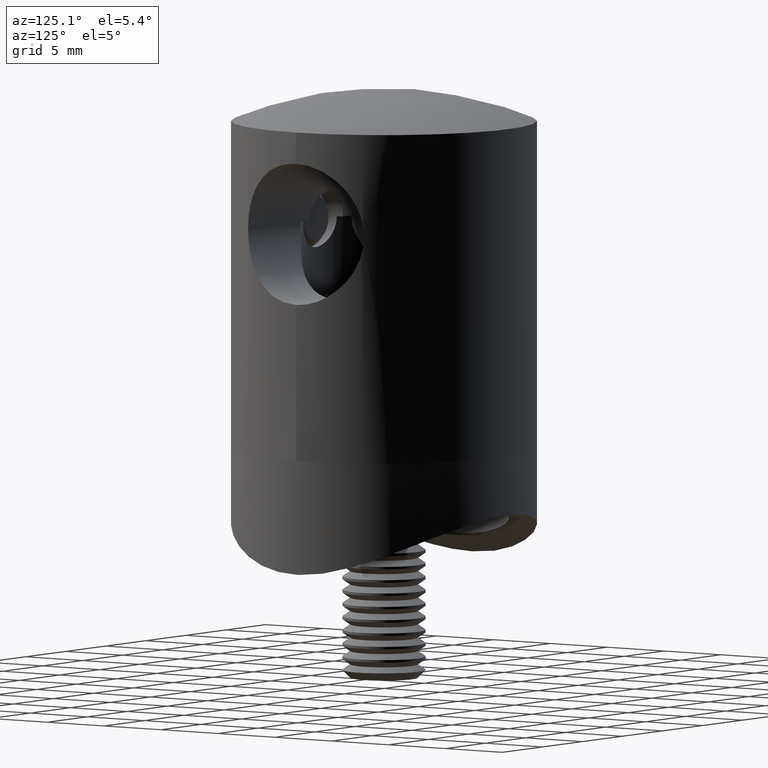
[diagram: clean part render]
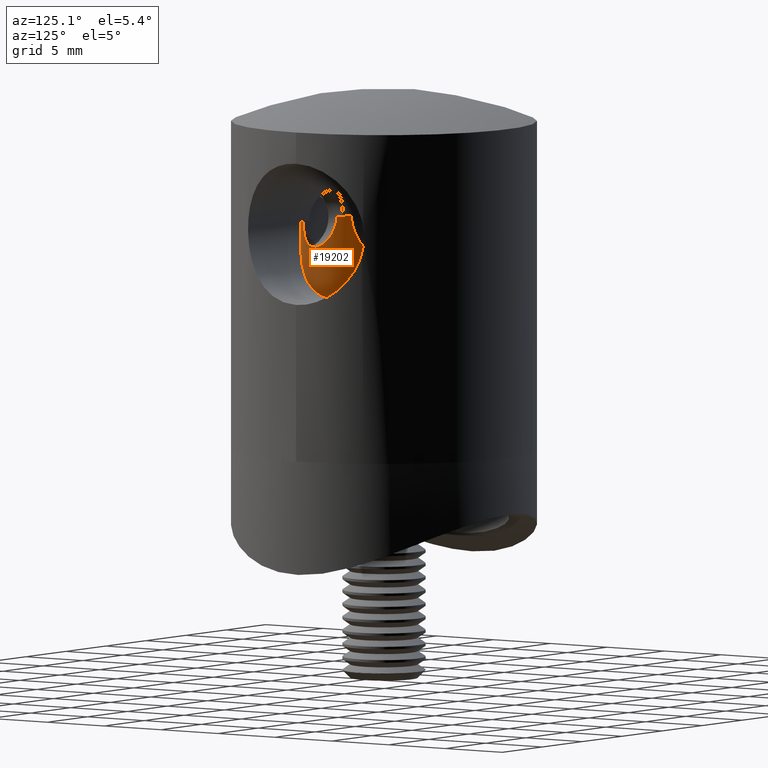
[diagram: same view with one face highlighted and labeled with its STEP entity id]
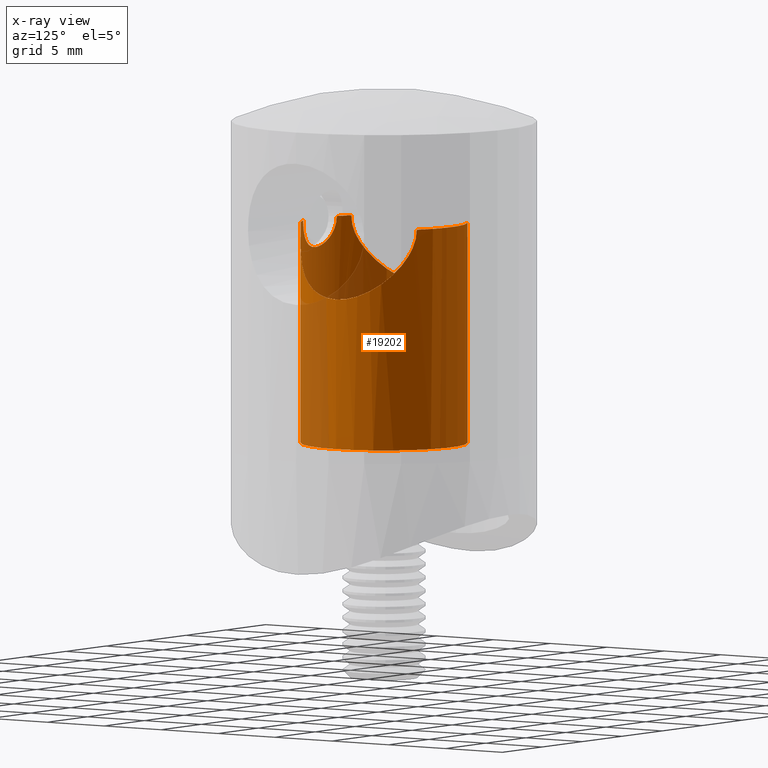
[diagram: x-ray of the same camera — body ghosted, the highlighted face saturated]
A machine part, auxiliary view. The second image highlights one B-rep face of the part: STEP entity #19202.
The next image is the same camera in x-ray: the body ghosted, the highlighted face saturated — about 32% of this face is hidden behind the body in this view.
In plain terms, the highlighted cylindrical surface (bore or boss wall) has radius 6 mm, axis along (-0, -0, -1).
Its self-contained STEP definition (entity closure, byte-faithful):
#41 = ORIENTED_EDGE ( 'NONE', *, *, #17735, .T. ) ;
#117 = CARTESIAN_POINT ( 'NONE',  ( -5.421010862427522200E-017, -6.000000000000001800, 1.900000000000007200 ) ) ;
#261 = CARTESIAN_POINT ( 'NONE',  ( -0.5468734143387938800, -5.976552651432204900, 1.967803393346849300 ) ) ;
#507 = AXIS2_PLACEMENT_3D ( 'NONE', #2845, #16365, #6125 ) ;
#579 = ORIENTED_EDGE ( 'NONE', *, *, #14724, .T. ) ;
#944 = CARTESIAN_POINT ( 'NONE',  ( -3.437899923984606400, -4.919077726535473300, 15.00999836244040100 ) ) ;
#1080 = CARTESIAN_POINT ( 'NONE',  ( 5.526712704781847000, -2.359354324370696300, 11.86563484534943500 ) ) ;
#1101 = EDGE_LOOP ( 'NONE', ( #12539, #41, #14121, #9681, #7061, #16584 ) ) ;
#1156 = CARTESIAN_POINT ( 'NONE',  ( 3.160696125855821500, 5.100000000000001400, 16.39999999999999900 ) ) ;
#1227 = CARTESIAN_POINT ( 'NONE',  ( 5.750816287354224300, 1.743401258066523000, 11.59501410306202000 ) ) ;
#1296 = CARTESIAN_POINT ( 'NONE',  ( 5.961137178804953900, -0.7048313270236067400, 11.34576889506183600 ) ) ;
#1368 = CARTESIAN_POINT ( 'NONE',  ( -3.236073373752399900, 5.052629025252485000, 15.68421491420723000 ) ) ;
#1396 = CARTESIAN_POINT ( 'NONE',  ( 1.677500159237451200, -5.764135783203782300, 2.707802910303008600 ) ) ;
#1403 = CARTESIAN_POINT ( 'NONE',  ( 1.281211595993395200, -5.862748392022851400, 14.73055257631058100 ) ) ;
#1482 = CARTESIAN_POINT ( 'NONE',  ( -1.833295944888411600, -5.714140928245533300, 2.939791683323970800 ) ) ;
#1485 = DIRECTION ( 'NONE',  ( -1.000000000000000000, 0.0000000000000000000, 0.0000000000000000000 ) ) ;
#1487 = CARTESIAN_POINT ( 'NONE',  ( 0.9338081153408350800, -5.928292938104198700, 14.51395085010584800 ) ) ;
#1551 = CARTESIAN_POINT ( 'NONE',  ( -1.677594955765174600, -5.764126152619212500, 2.707790437232916700 ) ) ;
#1558 = CARTESIAN_POINT ( 'NONE',  ( -2.086161322621488800, -5.625722805226717000, 16.12277185622838300 ) ) ;
#1617 = CARTESIAN_POINT ( 'NONE',  ( -2.032103204105485200, -5.645475466979344300, 3.452485469036112400 ) ) ;
#2139 = FACE_OUTER_BOUND ( 'NONE', #20701, .T. ) ;
#2561 = VERTEX_POINT ( 'NONE', #16644 ) ;
#2578 = CARTESIAN_POINT ( 'NONE',  ( -3.160696125855821500, -5.100000000000001400, 16.39999999999999900 ) ) ;
#2727 = CARTESIAN_POINT ( 'NONE',  ( -5.961137178804953900, 0.7048313270236067400, 11.34576889506183600 ) ) ;
#2792 = CARTESIAN_POINT ( 'NONE',  ( 4.072506689530409400, -4.413100678718776300, 13.82454396794957000 ) ) ;
#2845 = CARTESIAN_POINT ( 'NONE',  ( 0.0000000000000000000, 0.0000000000000000000, 0.5000000000000073300 ) ) ;
#2928 = CARTESIAN_POINT ( 'NONE',  ( -4.930883832659188400, 3.429680394446590800, 12.61241110340417000 ) ) ;
#2965 = CARTESIAN_POINT ( 'NONE',  ( 1.819463842430682400, -5.718030180234721100, 15.34256723993026700 ) ) ;
#3006 = CARTESIAN_POINT ( 'NONE',  ( 4.420797845977277000, -4.064149940858574600, 13.30304720220789800 ) ) ;
#3033 = CARTESIAN_POINT ( 'NONE',  ( -0.2760850920997860400, -5.995199655506469000, 6.086402343784770100 ) ) ;
#3110 = CARTESIAN_POINT ( 'NONE',  ( 1.389511688007988100, -5.837728522015407200, 2.419587935187493200 ) ) ;
#3117 = CARTESIAN_POINT ( 'NONE',  ( -2.099999999999993400, -5.620498198558562000, 16.39999999999999900 ) ) ;
#3175 = B_SPLINE_CURVE_WITH_KNOTS ( 'NONE', 3,
 ( #22017, #4741, #3335, #6379, #18630, #21861, #18412, #11821, #3110, #1396, #13480, #18339, #15127, #8112, #8180, #16932, #20041, #8323, #22088, #4674, #4895, #15051, #18486, #9812, #21789, #20124, #11523, #15200, #20198, #13404, #6460, #13257, #3033, #9883, #16854, #20274, #11603, #3255, #4815, #16782, #6600, #6534, #11741, #9961, #21935, #10100, #11672, #1617, #18563, #1482, #1551, #6680, #8401, #20347, #8536, #17148, #261, #7052, #8618, #117 ),
 .UNSPECIFIED., .T., .F.,
 ( 4, 2, 2, 2, 2, 2, 2, 2, 2, 2, 2, 2, 2, 2, 2, 2, 2, 2, 2, 2, 2, 2, 2, 2, 2, 2, 2, 2, 2, 4 ),
 ( 0.0000000000000000000, 0.0004135997285890928200, 0.0008271994571781854200, 0.001240799185767278200, 0.001654398914356370600, 0.002481598371534556400, 0.002895198100123648800, 0.003308797828712741300, 0.003722397557301833300, 0.004135997285890926100, 0.004549597014480017700, 0.004963196743069110200, 0.005376796471658201700, 0.005790396200247294200, 0.006203995928836386600, 0.006617595657425478200, 0.007031195386014570600, 0.007444795114603662200, 0.007858394843192756400, 0.008271994571781848800, 0.009099194028960033700, 0.009512793757549127900, 0.009926393486138223800, 0.01033999321472731600, 0.01075359294331641200, 0.01158079240049460000, 0.01199439212908369600, 0.01240799185767279400, 0.01282159158626188800, 0.01323519131485098400 ),
 .UNSPECIFIED. ) ;
#3195 = CIRCLE ( 'NONE', #9126, 6.000000000000000900 ) ;
#3255 = CARTESIAN_POINT ( 'NONE',  ( -1.282893921177701100, -5.862382304820062700, 5.668170089699676100 ) ) ;
#3335 = CARTESIAN_POINT ( 'NONE',  ( 0.2773110508732141700, -5.995114773543329000, 1.913844450117064800 ) ) ;
#3905 = CARTESIAN_POINT ( 'NONE',  ( 0.0000000000000000000, 0.0000000000000000000, 16.39999999999999900 ) ) ;
#4100 = DIRECTION ( 'NONE',  ( -0.0000000000000000000, -0.0000000000000000000, -1.000000000000000000 ) ) ;
#4287 = CARTESIAN_POINT ( 'NONE',  ( -3.224345162553830000, -5.061628180708900100, 15.68631211838138200 ) ) ;
#4566 = CARTESIAN_POINT ( 'NONE',  ( 5.094334937987475200, -3.184645687778531200, 12.40313220269684200 ) ) ;
#4568 = CARTESIAN_POINT ( 'NONE',  ( -3.160696125855820600, 5.100000000000000500, 16.21838618592478600 ) ) ;
#4602 = CARTESIAN_POINT ( 'NONE',  ( -2.032167245811339100, -5.645451481529298700, 15.85298922062499500 ) ) ;
#4612 = EDGE_CURVE ( 'NONE', #15043, #11993, #18530, .T. ) ;
#4614 = EDGE_CURVE ( 'NONE', #11993, #2561, #15256, .T. ) ;
#4643 = CARTESIAN_POINT ( 'NONE',  ( 3.662736925341414800, -4.753370674297174000, 14.54497055375999000 ) ) ;
#4646 = CARTESIAN_POINT ( 'NONE',  ( -3.899298338505512900, 4.564665450330344300, 14.10293722739147500 ) ) ;
#4674 = CARTESIAN_POINT ( 'NONE',  ( 1.885684773470323500, -5.696257661656740200, 4.934537723020821600 ) ) ;
#4680 = CARTESIAN_POINT ( 'NONE',  ( 2.043386902171582300, -5.642424350851010600, 15.84378896156594900 ) ) ;
#4716 = CARTESIAN_POINT ( 'NONE',  ( 3.279023719471608500, -5.025144788923042500, 15.51269972870959700 ) ) ;
#4718 = CARTESIAN_POINT ( 'NONE',  ( -5.935100455611847200, -0.8973519367980685700, 11.37647445812125600 ) ) ;
#4741 = CARTESIAN_POINT ( 'NONE',  ( 0.1399303184415932900, -6.000000000000000900, 1.900000000000006800 ) ) ;
#4784 = CARTESIAN_POINT ( 'NONE',  ( 6.007905056298978000, 0.007331184701876530100, 11.29070721246142900 ) ) ;
#4815 = CARTESIAN_POINT ( 'NONE',  ( -1.388036528353558100, -5.838097357248577700, 5.581828602384570500 ) ) ;
#4895 = CARTESIAN_POINT ( 'NONE',  ( 1.820638573103270200, -5.717652440165352300, 5.055379003986187700 ) ) ;
#4950 = VERTEX_POINT ( 'NONE', #9027 ) ;
#5080 = DIRECTION ( 'NONE',  ( -1.000000000000000000, 0.0000000000000000000, 0.0000000000000000000 ) ) ;
#5610 = DIRECTION ( 'NONE',  ( -1.000000000000000000, 0.0000000000000000000, 0.0000000000000000000 ) ) ;
#5781 = CARTESIAN_POINT ( 'NONE',  ( -4.589665673809800900, -3.874484500163802200, 13.06871005281209900 ) ) ;
#5797 = AXIS2_PLACEMENT_3D ( 'NONE', #3905, #12406, #5610 ) ;
#5882 = CARTESIAN_POINT ( 'NONE',  ( 0.0000000000000000000, 0.0000000000000000000, 16.39999999999999900 ) ) ;
#6016 = B_SPLINE_CURVE_WITH_KNOTS ( 'NONE', 3,
 ( #3117, #20053, #1558, #4602, #8190, #6467, #13262, #20130, #19976, #6320, #18346, #21714, #20283, #11610, #11678, #8119, #16556, #18270, #9819, #1487, #13411, #1403, #8038, #11448, #10041, #2965, #14905, #4680, #16639, #14986 ),
 .UNSPECIFIED., .F., .F.,
 ( 4, 2, 2, 2, 2, 2, 2, 2, 2, 2, 2, 2, 2, 2, 4 ),
 ( 0.0000000000000000000, 0.0004134711243893158000, 0.0008269422487786315900, 0.001240413373167952200, 0.001653884497557272700, 0.002480826746335913400, 0.002894297870725233300, 0.003307768995114553700, 0.003721240119503874000, 0.004134711243893194000, 0.004548182368282514300, 0.004961653492671834600, 0.005375124617061155000, 0.005788595741450475300, 0.006615537990229111700 ),
 .UNSPECIFIED. ) ;
#6125 = DIRECTION ( 'NONE',  ( 1.000000000000000000, 0.0000000000000000000, 0.0000000000000000000 ) ) ;
#6142 = CARTESIAN_POINT ( 'NONE',  ( -5.959378708157824900, -0.7195634073048298200, 11.34784246777162200 ) ) ;
#6214 = CARTESIAN_POINT ( 'NONE',  ( -3.587536456729938400, 4.810083889045049700, 14.69690675221483800 ) ) ;
#6320 = CARTESIAN_POINT ( 'NONE',  ( -1.293182858015596200, -5.862331884177947900, 14.72327574825753900 ) ) ;
#6351 = CARTESIAN_POINT ( 'NONE',  ( -5.937279120420515500, 0.8828896206105536500, 11.37390155145837900 ) ) ;
#6379 = CARTESIAN_POINT ( 'NONE',  ( 0.5472454995192380700, -5.976522812652007100, 1.967890563847576500 ) ) ;
#6435 = VERTEX_POINT ( 'NONE', #16450 ) ;
#6441 = VERTEX_POINT ( 'NONE', #19766 ) ;
#6460 = CARTESIAN_POINT ( 'NONE',  ( 0.1386258689238649400, -5.999981683544565800, 6.099947667266898000 ) ) ;
#6467 = CARTESIAN_POINT ( 'NONE',  ( -1.885609160016719700, -5.696279126466641300, 15.46546621339728700 ) ) ;
#6534 = CARTESIAN_POINT ( 'NONE',  ( -1.991790499454957100, -5.660027428170497600, 4.679568982034624000 ) ) ;
#6600 = CARTESIAN_POINT ( 'NONE',  ( -1.832704397464457200, -5.714346342055216100, 5.061775951773686400 ) ) ;
#6657 = AXIS2_PLACEMENT_3D ( 'NONE', #8292, #18675, #5080 ) ;
#6680 = CARTESIAN_POINT ( 'NONE',  ( -1.388843066986826800, -5.837892061353310100, 2.418972633787931100 ) ) ;
#7052 = CARTESIAN_POINT ( 'NONE',  ( -0.2773106023340089500, -5.995110587510879400, 1.913857049664069200 ) ) ;
#7061 = ORIENTED_EDGE ( 'NONE', *, *, #19546, .F. ) ;
#7063 = VERTEX_POINT ( 'NONE', #18699 ) ;
#7489 = CARTESIAN_POINT ( 'NONE',  ( -5.091321507266846100, -3.189219774148147800, 12.40698860909554400 ) ) ;
#7790 = CARTESIAN_POINT ( 'NONE',  ( -3.896672037690059700, -4.566915886893900400, 14.10728764135303600 ) ) ;
#7929 = CARTESIAN_POINT ( 'NONE',  ( 3.896672037690059700, 4.566915886893900400, 14.10728764135303600 ) ) ;
#7931 = CARTESIAN_POINT ( 'NONE',  ( -5.754041743160549100, 1.732659737827856500, 11.59116329903517700 ) ) ;
#8001 = CARTESIAN_POINT ( 'NONE',  ( 5.991650558390248600, 0.3634414265308563700, 11.30981556748035800 ) ) ;
#8038 = CARTESIAN_POINT ( 'NONE',  ( 1.388100743326528200, -5.838073354946367000, 14.81829146266722000 ) ) ;
#8081 = CARTESIAN_POINT ( 'NONE',  ( 4.415955492431838700, 4.069282658997688700, 13.31003616340318800 ) ) ;
#8112 = CARTESIAN_POINT ( 'NONE',  ( 2.086293483836122700, -5.625674900985020000, 3.723311567177205000 ) ) ;
#8119 = CARTESIAN_POINT ( 'NONE',  ( 0.1358850886313292300, -6.000052867338013100, 14.29984895038197100 ) ) ;
#8156 = CARTESIAN_POINT ( 'NONE',  ( -4.594853628076902100, 3.868286845074914800, 13.06160305806997900 ) ) ;
#8180 = CARTESIAN_POINT ( 'NONE',  ( 2.099901555218821200, -5.620534980703876500, 3.860305477660864500 ) ) ;
#8190 = CARTESIAN_POINT ( 'NONE',  ( -1.991294792107790100, -5.660199894163008100, 15.71910327246684600 ) ) ;
#8292 = CARTESIAN_POINT ( 'NONE',  ( 0.0000000000000000000, 0.0000000000000000000, 16.39999999999999900 ) ) ;
#8323 = CARTESIAN_POINT ( 'NONE',  ( 2.032077313730785000, -5.645484189008472600, 4.547412400692979700 ) ) ;
#8401 = CARTESIAN_POINT ( 'NONE',  ( -1.281623710314719200, -5.862660541099056200, 2.330856865501477400 ) ) ;
#8419 = CIRCLE ( 'NONE', #5797, 6.000000000000000900 ) ;
#8536 = CARTESIAN_POINT ( 'NONE',  ( -0.9349122421464504100, -5.928103206872799900, 2.114551264284959300 ) ) ;
#8618 = CARTESIAN_POINT ( 'NONE',  ( -0.1399303184415943700, -6.000000000000003600, 1.900000000000007500 ) ) ;
#9027 = CARTESIAN_POINT ( 'NONE',  ( -3.160696125855821500, -5.100000000000001400, 16.39999999999999900 ) ) ;
#9126 = AXIS2_PLACEMENT_3D ( 'NONE', #14901, #20127, #1485 ) ;
#9216 = CIRCLE ( 'NONE', #507, 6.000000000000000900 ) ;
#9626 = CARTESIAN_POINT ( 'NONE',  ( 5.754041743160549100, -1.732659737827856500, 11.59116329903517700 ) ) ;
#9628 = CARTESIAN_POINT ( 'NONE',  ( -5.992521419472591800, 0.3487559336365772000, 11.30879105119112500 ) ) ;
#9681 = ORIENTED_EDGE ( 'NONE', *, *, #4612, .F. ) ;
#9704 = CARTESIAN_POINT ( 'NONE',  ( 5.935100455611847200, 0.8973519367980685700, 11.37647445812125600 ) ) ;
#9781 = CARTESIAN_POINT ( 'NONE',  ( 5.522045992001460000, 2.370304617501131500, 11.87131438089884300 ) ) ;
#9783 = CARTESIAN_POINT ( 'NONE',  ( -4.420797845977277000, 4.064149940858574600, 13.30304720220789800 ) ) ;
#9812 = CARTESIAN_POINT ( 'NONE',  ( 1.388251816607981800, -5.838037281970530400, 5.581575950864485800 ) ) ;
#9819 = CARTESIAN_POINT ( 'NONE',  ( 0.6780404846647971600, -5.962962003686424600, 14.40765462500891300 ) ) ;
#9820 = EDGE_CURVE ( 'NONE', #6441, #6441, #9216, .T. ) ;
#9854 = CARTESIAN_POINT ( 'NONE',  ( -3.279023719471608500, 5.025144788923042500, 15.51269972870959700 ) ) ;
#9883 = CARTESIAN_POINT ( 'NONE',  ( -0.5485102145950172500, -5.976435261253112900, 6.031854882297268200 ) ) ;
#9961 = CARTESIAN_POINT ( 'NONE',  ( -2.085970634324527700, -5.625794041661615500, 4.278667550940393300 ) ) ;
#10041 = CARTESIAN_POINT ( 'NONE',  ( 1.667353304562425100, -5.764221610395673600, 15.11604296265565300 ) ) ;
#10100 = CARTESIAN_POINT ( 'NONE',  ( -2.099994040831215400, -5.620500425096848200, 3.861512015611140700 ) ) ;
#10142 = CARTESIAN_POINT ( 'NONE',  ( 3.160696125855820600, -5.100000000000000500, 16.21838618592478600 ) ) ;
#10369 = EDGE_CURVE ( 'NONE', #7063, #4950, #8419, .T. ) ;
#11131 = CARTESIAN_POINT ( 'NONE',  ( -3.160696125855821500, -5.100000000000000500, 16.03670030206456000 ) ) ;
#11278 = CARTESIAN_POINT ( 'NONE',  ( 5.091321507266846100, 3.189219774148147800, 12.40698860909554400 ) ) ;
#11281 = CARTESIAN_POINT ( 'NONE',  ( -5.392728365209467100, 2.648149806214045400, 12.02916221421408600 ) ) ;
#11351 = CARTESIAN_POINT ( 'NONE',  ( -3.160696125855821500, 5.100000000000001400, 16.39999999999999900 ) ) ;
#11414 = CARTESIAN_POINT ( 'NONE',  ( -3.448880571870624600, 4.910452896524973600, 15.01259739754040400 ) ) ;
#11448 = CARTESIAN_POINT ( 'NONE',  ( 1.581145426180780900, -5.788773904085906500, 15.01125786700242200 ) ) ;
#11491 = CARTESIAN_POINT ( 'NONE',  ( 5.992521419472591800, -0.3487559336365772000, 11.30879105119112500 ) ) ;
#11523 = CARTESIAN_POINT ( 'NONE',  ( 0.9337857770029868200, -5.928263369488840700, 5.885943294885849200 ) ) ;
#11572 = CARTESIAN_POINT ( 'NONE',  ( 4.926986027419904000, 3.435326742096961100, 12.61745416032030000 ) ) ;
#11603 = CARTESIAN_POINT ( 'NONE',  ( -1.056301083882023900, -5.907416619898390800, 5.820119853568162000 ) ) ;
#11610 = CARTESIAN_POINT ( 'NONE',  ( -0.2775029543852128300, -5.995124293005040400, 14.31381444353397100 ) ) ;
#11672 = CARTESIAN_POINT ( 'NONE',  ( -2.086440083120673500, -5.625620362231071400, 3.724349182297993300 ) ) ;
#11678 = CARTESIAN_POINT ( 'NONE',  ( -0.1405143709996645200, -5.999946239734655700, 14.30015360083966800 ) ) ;
#11741 = CARTESIAN_POINT ( 'NONE',  ( -2.031781744484791200, -5.645590759985886100, 4.548445105721373100 ) ) ;
#11821 = CARTESIAN_POINT ( 'NONE',  ( 1.282773082496065000, -5.862417377531365900, 2.331696866173552900 ) ) ;
#11993 = VERTEX_POINT ( 'NONE', #20039 ) ;
#12406 = DIRECTION ( 'NONE',  ( 0.0000000000000000000, 0.0000000000000000000, -1.000000000000000000 ) ) ;
#12539 = ORIENTED_EDGE ( 'NONE', *, *, #10369, .F. ) ;
#12843 = AXIS2_PLACEMENT_3D ( 'NONE', #5882, #4100, #17628 ) ;
#12854 = CARTESIAN_POINT ( 'NONE',  ( -3.580811593932919900, -4.818564310667141200, 14.69862154080247400 ) ) ;
#12932 = CARTESIAN_POINT ( 'NONE',  ( -4.070385370908269400, -4.414939093832910700, 13.82798703968248900 ) ) ;
#12947 = ORIENTED_EDGE ( 'NONE', *, *, #9820, .T. ) ;
#12997 = CARTESIAN_POINT ( 'NONE',  ( 4.594853628076902100, -3.868286845074914800, 13.06160305806997900 ) ) ;
#12999 = CARTESIAN_POINT ( 'NONE',  ( -5.522045992001460000, -2.370304617501131500, 11.87131438089884300 ) ) ;
#13067 = CARTESIAN_POINT ( 'NONE',  ( 5.392728365209467100, -2.648149806214045400, 12.02916221421408600 ) ) ;
#13154 = CARTESIAN_POINT ( 'NONE',  ( -5.841456572235876400, -1.414219495481199500, 11.48734484294548600 ) ) ;
#13228 = CARTESIAN_POINT ( 'NONE',  ( 5.844685562798253500, -1.400985515938927300, 11.48350954739190200 ) ) ;
#13257 = CARTESIAN_POINT ( 'NONE',  ( -0.1370357647622484900, -6.000018211104130500, 6.100052031729359400 ) ) ;
#13262 = CARTESIAN_POINT ( 'NONE',  ( -1.821103364984106600, -5.717509085771630400, 15.34534528377743400 ) ) ;
#13404 = CARTESIAN_POINT ( 'NONE',  ( 0.2777402781516119000, -5.995120906657181300, 6.086177050655782800 ) ) ;
#13411 = CARTESIAN_POINT ( 'NONE',  ( 1.054786958967406600, -5.907685361718814800, 14.57901611062495200 ) ) ;
#13480 = CARTESIAN_POINT ( 'NONE',  ( 1.833344241584947000, -5.714120875558134700, 2.940059396667278300 ) ) ;
#14121 = ORIENTED_EDGE ( 'NONE', *, *, #4614, .F. ) ;
#14204 = VERTEX_POINT ( 'NONE', #19629 ) ;
#14649 = CARTESIAN_POINT ( 'NONE',  ( -5.844685562798253500, 1.400985515938927300, 11.48350954739190200 ) ) ;
#14724 = EDGE_CURVE ( 'NONE', #14204, #14204, #3175, .T. ) ;
#14797 = CARTESIAN_POINT ( 'NONE',  ( 5.841456572235876400, 1.414219495481199500, 11.48734484294548600 ) ) ;
#14872 = CARTESIAN_POINT ( 'NONE',  ( 3.899298338505512900, -4.564665450330344300, 14.10293722739147500 ) ) ;
#14901 = CARTESIAN_POINT ( 'NONE',  ( 0.0000000000000000000, 0.0000000000000000000, 16.39999999999999900 ) ) ;
#14905 = CARTESIAN_POINT ( 'NONE',  ( 1.885418852616170400, -5.696340175670712800, 15.46517598554055600 ) ) ;
#14944 = CARTESIAN_POINT ( 'NONE',  ( 3.385219306525883500, -4.954227179815460700, 15.17729195150674400 ) ) ;
#14986 = CARTESIAN_POINT ( 'NONE',  ( 2.099999999999993400, -5.620498198558562000, 16.39999999999999900 ) ) ;
#15021 = CARTESIAN_POINT ( 'NONE',  ( 4.070385370908269400, 4.414939093832910700, 13.82798703968248900 ) ) ;
#15043 = VERTEX_POINT ( 'NONE', #19585 ) ;
#15051 = CARTESIAN_POINT ( 'NONE',  ( 1.669065092636238500, -5.763722404570113900, 5.281706429908801700 ) ) ;
#15059 = EDGE_CURVE ( 'NONE', #4950, #6435, #15324, .T. ) ;
#15127 = CARTESIAN_POINT ( 'NONE',  ( 2.031893931028322200, -5.645550960297868800, 3.451744546214746900 ) ) ;
#15200 = CARTESIAN_POINT ( 'NONE',  ( 0.6810570200218701900, -5.962585327761368100, 5.991205495255797200 ) ) ;
#15213 = CYLINDRICAL_SURFACE ( 'NONE', #12843, 6.000000000000000900 ) ;
#15256 = CIRCLE ( 'NONE', #6657, 6.000000000000000900 ) ;
#15324 = B_SPLINE_CURVE_WITH_KNOTS ( 'NONE', 3,
 ( #2578, #11131, #4287, #944, #12854, #7790, #12932, #16014, #5781, #17749, #7489, #16385, #12999, #20097, #13154, #4718, #6142, #18159, #20016, #9628, #2727, #6351, #14649, #7931, #16598, #11281, #21675, #2928, #8156, #9783, #21538, #4646, #18239, #6214, #11414, #19871, #9854, #1368, #16519, #4568, #11351 ),
 .UNSPECIFIED., .F., .F.,
 ( 4, 2, 2, 2, 2, 2, 2, 2, 2, 1, 2, 2, 2, 2, 2, 2, 2, 2, 2, 2, 4 ),
 ( 0.0000000000000000000, 0.001071220141085162500, 0.002142440282170325100, 0.003213660423255487200, 0.004284880564340650200, 0.005356100705425813200, 0.006427320846510976200, 0.007498540987596139100, 0.008034151058138721100, 0.008569761128681303900, 0.009105371199223884900, 0.009640981269766464200, 0.01071220141085162800, 0.01178342155193679200, 0.01285464169302195600, 0.01392586183410712100, 0.01499708197519228500, 0.01553269204573486800, 0.01606830211627745300, 0.01660391218682003400, 0.01713952225736261800 ),
 .UNSPECIFIED. ) ;
#15488 = FACE_OUTER_BOUND ( 'NONE', #1101, .T. ) ;
#16014 = CARTESIAN_POINT ( 'NONE',  ( -4.415955492431838700, -4.069282658997688700, 13.31003616340318800 ) ) ;
#16365 = DIRECTION ( 'NONE',  ( 0.0000000000000000000, 0.0000000000000000000, -1.000000000000000000 ) ) ;
#16385 = CARTESIAN_POINT ( 'NONE',  ( -5.387974981389500200, -2.657518214066716400, 12.03504184698020800 ) ) ;
#16420 = EDGE_LOOP ( 'NONE', ( #579 ) ) ;
#16450 = CARTESIAN_POINT ( 'NONE',  ( -3.160696125855821500, 5.100000000000001400, 16.39999999999999900 ) ) ;
#16517 = CARTESIAN_POINT ( 'NONE',  ( 4.930883832659188400, -3.429680394446590800, 12.61241110340417000 ) ) ;
#16519 = CARTESIAN_POINT ( 'NONE',  ( -3.176763845537689900, 5.090127937175814100, 16.03667378425232200 ) ) ;
#16556 = CARTESIAN_POINT ( 'NONE',  ( 0.2762238880629270300, -5.995169075456185900, 14.31368869356891900 ) ) ;
#16584 = ORIENTED_EDGE ( 'NONE', *, *, #15059, .F. ) ;
#16596 = CARTESIAN_POINT ( 'NONE',  ( 3.448880571870624600, -4.910452896524973600, 15.01259739754040400 ) ) ;
#16598 = CARTESIAN_POINT ( 'NONE',  ( -5.526712704781847000, 2.359354324370696300, 11.86563484534943500 ) ) ;
#16639 = CARTESIAN_POINT ( 'NONE',  ( 2.099999999999993400, -5.620498198558562900, 16.12015501401208100 ) ) ;
#16644 = CARTESIAN_POINT ( 'NONE',  ( 2.099999999999993400, -5.620498198558562000, 16.39999999999999900 ) ) ;
#16754 = CARTESIAN_POINT ( 'NONE',  ( 5.937279120420515500, -0.8828896206105536500, 11.37390155145837900 ) ) ;
#16782 = CARTESIAN_POINT ( 'NONE',  ( -1.679082131009260700, -5.763747723864387500, 5.290733017625370800 ) ) ;
#16854 = CARTESIAN_POINT ( 'NONE',  ( -0.6799031944775879600, -5.962726470154970900, 5.991631115680869300 ) ) ;
#16932 = CARTESIAN_POINT ( 'NONE',  ( 2.100097390676808600, -5.620461810260685800, 4.136718875267625600 ) ) ;
#17048 = CARTESIAN_POINT ( 'NONE',  ( 3.160696125855821500, -5.100000000000001400, 16.39999999999999900 ) ) ;
#17148 = CARTESIAN_POINT ( 'NONE',  ( -0.6805891605157771100, -5.962656029525707200, 2.008574322222096000 ) ) ;
#17628 = DIRECTION ( 'NONE',  ( -1.000000000000000000, 0.0000000000000000000, 0.0000000000000000000 ) ) ;
#17735 = EDGE_CURVE ( 'NONE', #7063, #2561, #6016, .T. ) ;
#17749 = CARTESIAN_POINT ( 'NONE',  ( -4.926986027419904000, -3.435326742096961100, 12.61745416032030000 ) ) ;
#18159 = CARTESIAN_POINT ( 'NONE',  ( -5.991650558390248600, -0.3634414265308563700, 11.30981556748035800 ) ) ;
#18236 = CARTESIAN_POINT ( 'NONE',  ( 5.959378708157824900, 0.7195634073048298200, 11.34784246777162200 ) ) ;
#18239 = CARTESIAN_POINT ( 'NONE',  ( -3.662736925341414800, 4.753370674297174000, 14.54497055375999000 ) ) ;
#18270 = CARTESIAN_POINT ( 'NONE',  ( 0.5465245440339813200, -5.976592909209327500, 14.36768471283434000 ) ) ;
#18309 = CARTESIAN_POINT ( 'NONE',  ( 3.437899923984606400, 4.919077726535473300, 15.00999836244040100 ) ) ;
#18339 = CARTESIAN_POINT ( 'NONE',  ( 1.990963533487665200, -5.660313271408463200, 3.318295880892016200 ) ) ;
#18346 = CARTESIAN_POINT ( 'NONE',  ( -1.060865814313644900, -5.910952300828607300, 14.56717287771649800 ) ) ;
#18412 = CARTESIAN_POINT ( 'NONE',  ( 1.055318436482936700, -5.907600806349175400, 2.179273462287427700 ) ) ;
#18486 = CARTESIAN_POINT ( 'NONE',  ( 1.581278183707604900, -5.788737489101017700, 5.388590976637336100 ) ) ;
#18530 = B_SPLINE_CURVE_WITH_KNOTS ( 'NONE', 3,
 ( #1156, #20093, #20014, #18309, #21535, #7929, #15021, #8081, #21833, #11572, #11278, #21673, #9781, #1227, #14797, #9704, #18236, #8001, #4784, #11491, #1296, #16754, #13228, #9626, #1080, #13067, #4566, #16517, #12997, #3006, #2792, #14872, #4643, #19939, #16596, #14944, #4716, #20319, #21905, #10142, #17048 ),
 .UNSPECIFIED., .F., .F.,
 ( 4, 2, 2, 2, 2, 2, 2, 2, 2, 1, 2, 2, 2, 2, 2, 2, 2, 2, 2, 2, 4 ),
 ( 0.0000000000000000000, 0.001071220141085162500, 0.002142440282170325100, 0.003213660423255487200, 0.004284880564340650200, 0.005356100705425813200, 0.006427320846510976200, 0.007498540987596139100, 0.008034151058138721100, 0.008569761128681303900, 0.009105371199223884900, 0.009640981269766464200, 0.01071220141085162800, 0.01178342155193679200, 0.01285464169302195600, 0.01392586183410712100, 0.01499708197519228500, 0.01553269204573486800, 0.01606830211627745300, 0.01660391218682003400, 0.01713952225736261800 ),
 .UNSPECIFIED. ) ;
#18563 = CARTESIAN_POINT ( 'NONE',  ( -1.991246174694209200, -5.660214997163486700, 3.319050225171499900 ) ) ;
#18630 = CARTESIAN_POINT ( 'NONE',  ( 0.6812341139050355200, -5.962577447961941800, 2.008811109739972300 ) ) ;
#18675 = DIRECTION ( 'NONE',  ( 0.0000000000000000000, 0.0000000000000000000, -1.000000000000000000 ) ) ;
#18699 = CARTESIAN_POINT ( 'NONE',  ( -2.099999999999993400, -5.620498198558562000, 16.39999999999999900 ) ) ;
#19202 = ADVANCED_FACE ( 'NONE', ( #20023, #2139, #15488 ), #15213, .F. ) ;
#19546 = EDGE_CURVE ( 'NONE', #6435, #15043, #3195, .T. ) ;
#19585 = CARTESIAN_POINT ( 'NONE',  ( 3.160696125855821500, 5.100000000000001400, 16.39999999999999900 ) ) ;
#19629 = CARTESIAN_POINT ( 'NONE',  ( 0.0000000000000000000, -6.000000000000000900, 1.900000000000006800 ) ) ;
#19766 = CARTESIAN_POINT ( 'NONE',  ( 6.000000000000000900, 0.0000000000000000000, 0.5000000000000073300 ) ) ;
#19871 = CARTESIAN_POINT ( 'NONE',  ( -3.385219306525883500, 4.954227179815460700, 15.17729195150674400 ) ) ;
#19939 = CARTESIAN_POINT ( 'NONE',  ( 3.587536456729938400, -4.810083889045049700, 14.69690675221483800 ) ) ;
#19976 = CARTESIAN_POINT ( 'NONE',  ( -1.581135186446068800, -5.788767207127166100, 15.01131607183499200 ) ) ;
#20014 = CARTESIAN_POINT ( 'NONE',  ( 3.224345162553830000, 5.061628180708900100, 15.68631211838138200 ) ) ;
#20016 = CARTESIAN_POINT ( 'NONE',  ( -6.007905056298978000, -0.007331184701876530100, 11.29070721246142900 ) ) ;
#20023 = FACE_BOUND ( 'NONE', #16420, .T. ) ;
#20039 = CARTESIAN_POINT ( 'NONE',  ( 3.160696125855821500, -5.100000000000001400, 16.39999999999999900 ) ) ;
#20041 = CARTESIAN_POINT ( 'NONE',  ( 2.086195265504057000, -5.625710555255438700, 4.277106224398222500 ) ) ;
#20053 = CARTESIAN_POINT ( 'NONE',  ( -2.099999999999993400, -5.620498198558562900, 16.26009624278562200 ) ) ;
#20093 = CARTESIAN_POINT ( 'NONE',  ( 3.160696125855821500, 5.100000000000000500, 16.03670030206456000 ) ) ;
#20097 = CARTESIAN_POINT ( 'NONE',  ( -5.750816287354224300, -1.743401258066523000, 11.59501410306202000 ) ) ;
#20124 = CARTESIAN_POINT ( 'NONE',  ( 1.056572057962529300, -5.907370391185574800, 5.819974034561118600 ) ) ;
#20127 = DIRECTION ( 'NONE',  ( 0.0000000000000000000, 0.0000000000000000000, -1.000000000000000000 ) ) ;
#20130 = CARTESIAN_POINT ( 'NONE',  ( -1.668887732770615300, -5.763778391580065600, 15.11799852893426500 ) ) ;
#20198 = CARTESIAN_POINT ( 'NONE',  ( 0.5499592264330737100, -5.976299791409975800, 6.031457407392960800 ) ) ;
#20274 = CARTESIAN_POINT ( 'NONE',  ( -0.9335114993840605300, -5.928316084038139700, 5.886112174640410400 ) ) ;
#20283 = CARTESIAN_POINT ( 'NONE',  ( -0.5490562351194452400, -5.976375191447418800, 14.36832204412794300 ) ) ;
#20319 = CARTESIAN_POINT ( 'NONE',  ( 3.236073373752399900, -5.052629025252485000, 15.68421491420723000 ) ) ;
#20347 = CARTESIAN_POINT ( 'NONE',  ( -1.054979748196500600, -5.907653145361193100, 2.179116733785587000 ) ) ;
#20701 = EDGE_LOOP ( 'NONE', ( #12947 ) ) ;
#21535 = CARTESIAN_POINT ( 'NONE',  ( 3.580811593932919900, 4.818564310667141200, 14.69862154080247400 ) ) ;
#21538 = CARTESIAN_POINT ( 'NONE',  ( -4.072506689530409400, 4.413100678718776300, 13.82454396794957000 ) ) ;
#21673 = CARTESIAN_POINT ( 'NONE',  ( 5.387974981389500200, 2.657518214066716400, 12.03504184698020800 ) ) ;
#21675 = CARTESIAN_POINT ( 'NONE',  ( -5.094334937987475200, 3.184645687778531200, 12.40313220269684200 ) ) ;
#21714 = CARTESIAN_POINT ( 'NONE',  ( -0.6825312203143322200, -5.962411381140925400, 14.40931569119171100 ) ) ;
#21789 = CARTESIAN_POINT ( 'NONE',  ( 1.283385613909028100, -5.862276931221736700, 5.667804354879554500 ) ) ;
#21833 = CARTESIAN_POINT ( 'NONE',  ( 4.589665673809800900, 3.874484500163802200, 13.06871005281209900 ) ) ;
#21861 = CARTESIAN_POINT ( 'NONE',  ( 0.9351004188317552100, -5.928068568057646800, 2.114661748824999200 ) ) ;
#21905 = CARTESIAN_POINT ( 'NONE',  ( 3.176763845537689900, -5.090127937175814100, 16.03667378425232200 ) ) ;
#21935 = CARTESIAN_POINT ( 'NONE',  ( -2.100005955277873600, -5.620495973474043600, 4.138307198453890800 ) ) ;
#22017 = CARTESIAN_POINT ( 'NONE',  ( -5.421010862427522200E-017, -6.000000000000001800, 1.900000000000007200 ) ) ;
#22088 = CARTESIAN_POINT ( 'NONE',  ( 1.992054000542895300, -5.659936331073166300, 4.678887825467367800 ) ) ;